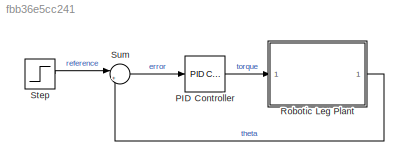
MODEL slx_fbb36e5cc241
KIND model
CONFIG AbsTol = auto
CONFIG EnableMultiTasking = off
CONFIG FixedStep = auto
CONFIG MaxStep = auto
CONFIG MinStep = auto
CONFIG RelTol = 1e-3
CONFIG SampleTimeConstraint = Unconstrained
CONFIG SolverName = VariableStepAuto
CONFIG StartTime = 0.0
CONFIG StopTime = 10.0
BLOCK [Reference] PID Controller  REF=slpidlib/PID Controller
  Ports = [1, 1]
  SourceBlock = slpidlib/PID Controller
  SourceProductBaseCode = SL
  SourceType = PID 1dof
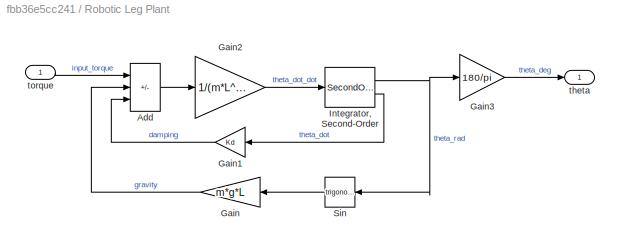
BLOCK [SubSystem] Robotic Leg Plant
  Ports = [1, 1]
  RequestExecContextInheritance = off
BLOCK [Sum] Robotic Leg Plant/Add
  IconShape = rectangular
  Inputs = +--
  Ports = [3, 1]
BLOCK [Gain] Robotic Leg Plant/Gain
  Gain = m*g*L
BLOCK [Gain] Robotic Leg Plant/Gain1
  Gain = Kd
BLOCK [Gain] Robotic Leg Plant/Gain2
  Gain = 1/(m*L^2)
BLOCK [Gain] Robotic Leg Plant/Gain3
  Gain = 180/pi
BLOCK [SecondOrderIntegrator] Robotic Leg Plant/Integrator, Second-Order
  ICX = 0
  LimitX = on
  LowerLimitX = -pi/4
  Ports = [1, 2]
  UpperLimitX = pi/4
BLOCK [Trigonometry] Robotic Leg Plant/Sin
  Ports = [1, 1]
BLOCK [Outport] Robotic Leg Plant/theta
BLOCK [Inport] Robotic Leg Plant/torque
BLOCK [Step] Step
  After = 10
  SampleTime = 0
BLOCK [Sum] Sum
  Inputs = |+-
  Ports = [2, 1]
LINE PID Controller:1 -> Robotic Leg Plant:1
LINE Robotic Leg Plant/Add:1 -> Robotic Leg Plant/Gain2:1
LINE Robotic Leg Plant/Gain1:1 -> Robotic Leg Plant/Add:3
LINE Robotic Leg Plant/Gain2:1 -> Robotic Leg Plant/Integrator, Second-Order:1
LINE Robotic Leg Plant/Gain3:1 -> Robotic Leg Plant/theta:1
LINE Robotic Leg Plant/Gain:1 -> Robotic Leg Plant/Add:2
NET Robotic Leg Plant/Integrator, Second-Order:1 -> Robotic Leg Plant/Gain3:1, Robotic Leg Plant/Sin:1
LINE Robotic Leg Plant/Integrator, Second-Order:2 -> Robotic Leg Plant/Gain1:1
LINE Robotic Leg Plant/Sin:1 -> Robotic Leg Plant/Gain:1
LINE Robotic Leg Plant/torque:1 -> Robotic Leg Plant/Add:1
LINE Robotic Leg Plant:1 -> Sum:2
LINE Step:1 -> Sum:1
LINE Sum:1 -> PID Controller:1
note: NET lines group one-source signal fan-out (src -> all destinations, sorted); 1:1 wires keep LINE
